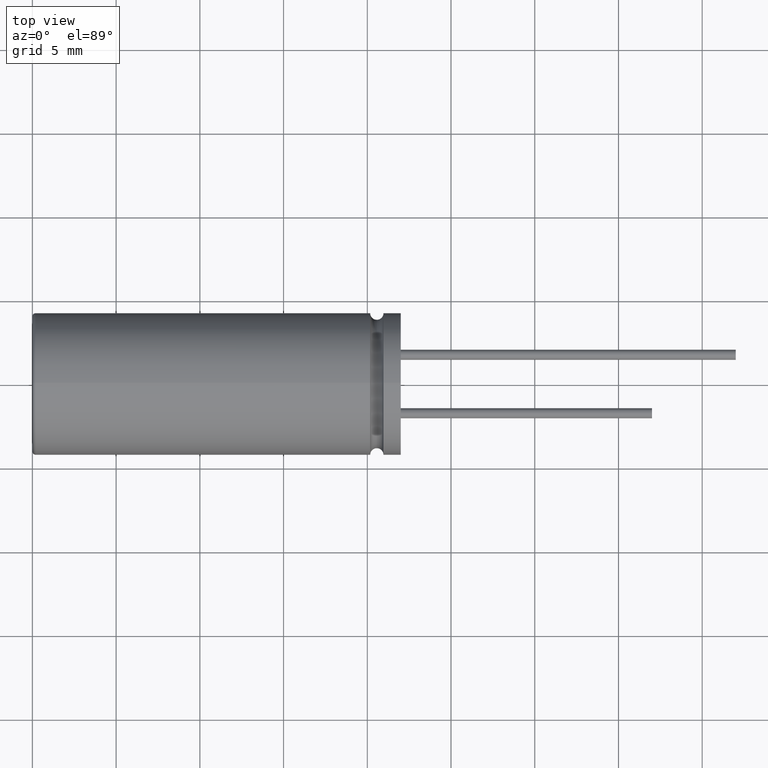
[diagram: clean part render]
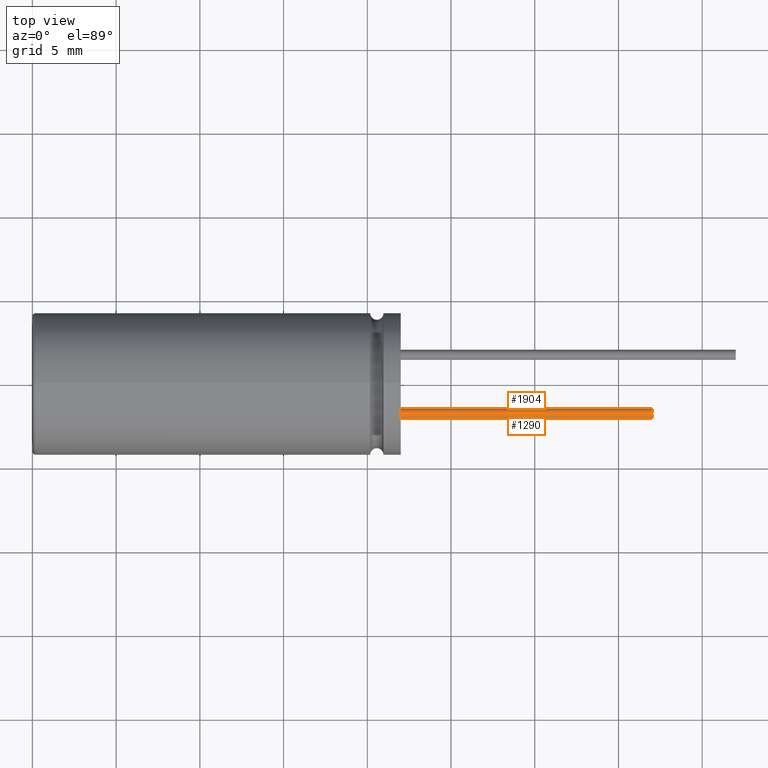
[diagram: same view with one multi-face feature highlighted, each face labeled with its STEP entity id]
A machine part, top view. The highlighted faces form ONE feature: a constant-radius fillet chain: 2 tangent blend faces with common blend radius 0.3 mm. The faces share edges in the B-rep.
Their STEP definitions:
[1] entity #1290 (Cylinder):
#168 = AXIS2_PLACEMENT_3D ( 'NONE', #329, #1618, #854 ) ;
#209 = DIRECTION ( 'NONE',  ( -1.000000000000000000, -0.0000000000000000000, -0.0000000000000000000 ) ) ;
#263 = CARTESIAN_POINT ( 'NONE',  ( 22.00000000000000000, -1.750000000000000000, 0.3000000000000000400 ) ) ;
#282 = ORIENTED_EDGE ( 'NONE', *, *, #1685, .F. ) ;
#329 = CARTESIAN_POINT ( 'NONE',  ( 22.00000000000000000, -1.750000000000000000, 0.0000000000000000000 ) ) ;
#508 = CARTESIAN_POINT ( 'NONE',  ( 37.00000000000000000, -1.750000000000000000, 0.0000000000000000000 ) ) ;
#652 = VECTOR ( 'NONE', #1252, 1000.000000000000000 ) ;
#756 = CIRCLE ( 'NONE', #1348, 0.3000000000000000400 ) ;
#854 = DIRECTION ( 'NONE',  ( 0.0000000000000000000, 0.0000000000000000000, -1.000000000000000000 ) ) ;
#999 = DIRECTION ( 'NONE',  ( 0.0000000000000000000, 0.0000000000000000000, 1.000000000000000000 ) ) ;
#1167 = ORIENTED_EDGE ( 'NONE', *, *, #1712, .T. ) ;
#1170 = EDGE_CURVE ( 'NONE', #3269, #1633, #2863, .T. ) ;
#1211 = EDGE_LOOP ( 'NONE', ( #282, #2688, #1293, #1167 ) ) ;
#1252 = DIRECTION ( 'NONE',  ( -1.000000000000000000, -0.0000000000000000000, -0.0000000000000000000 ) ) ;
#1290 = ADVANCED_FACE ( 'NONE', ( #2733 ), #2287, .T. ) ;
#1293 = ORIENTED_EDGE ( 'NONE', *, *, #1170, .T. ) ;
#1348 = AXIS2_PLACEMENT_3D ( 'NONE', #2830, #3088, #1692 ) ;
#1368 = CARTESIAN_POINT ( 'NONE',  ( 37.00000000000000000, -1.750000000000000000, -0.3000000000000000400 ) ) ;
#1416 = CARTESIAN_POINT ( 'NONE',  ( 37.00000000000000000, -1.750000000000000000, 0.3000000000000000400 ) ) ;
#1618 = DIRECTION ( 'NONE',  ( 1.000000000000000000, 0.0000000000000000000, 0.0000000000000000000 ) ) ;
#1633 = VERTEX_POINT ( 'NONE', #263 ) ;
#1642 = DIRECTION ( 'NONE',  ( -1.000000000000000000, -0.0000000000000000000, -0.0000000000000000000 ) ) ;
#1675 = AXIS2_PLACEMENT_3D ( 'NONE', #508, #209, #999 ) ;
#1685 = EDGE_CURVE ( 'NONE', #2049, #2116, #2438, .T. ) ;
#1692 = DIRECTION ( 'NONE',  ( 0.0000000000000000000, 0.0000000000000000000, -1.000000000000000000 ) ) ;
#1712 = EDGE_CURVE ( 'NONE', #1633, #2116, #1808, .T. ) ;
#1808 = CIRCLE ( 'NONE', #168, 0.3000000000000000400 ) ;
#2040 = VECTOR ( 'NONE', #1642, 1000.000000000000000 ) ;
#2049 = VERTEX_POINT ( 'NONE', #3342 ) ;
#2080 = CARTESIAN_POINT ( 'NONE',  ( 22.00000000000000000, -1.750000000000000000, -0.3000000000000000400 ) ) ;
#2116 = VERTEX_POINT ( 'NONE', #2080 ) ;
#2287 = CYLINDRICAL_SURFACE ( 'NONE', #1675, 0.3000000000000000400 ) ;
#2438 = LINE ( 'NONE', #1368, #2040 ) ;
#2530 = CARTESIAN_POINT ( 'NONE',  ( 37.00000000000000000, -1.750000000000000000, 0.3000000000000000400 ) ) ;
#2609 = EDGE_CURVE ( 'NONE', #3269, #2049, #756, .T. ) ;
#2688 = ORIENTED_EDGE ( 'NONE', *, *, #2609, .F. ) ;
#2733 = FACE_OUTER_BOUND ( 'NONE', #1211, .T. ) ;
#2830 = CARTESIAN_POINT ( 'NONE',  ( 37.00000000000000000, -1.750000000000000000, 0.0000000000000000000 ) ) ;
#2863 = LINE ( 'NONE', #2530, #652 ) ;
#3088 = DIRECTION ( 'NONE',  ( 1.000000000000000000, 0.0000000000000000000, 0.0000000000000000000 ) ) ;
#3269 = VERTEX_POINT ( 'NONE', #1416 ) ;
#3342 = CARTESIAN_POINT ( 'NONE',  ( 37.00000000000000000, -1.750000000000000000, -0.3000000000000000400 ) ) ;
[2] entity #1904 (Cylinder):
#263 = CARTESIAN_POINT ( 'NONE',  ( 22.00000000000000000, -1.750000000000000000, 0.3000000000000000400 ) ) ;
#426 = CYLINDRICAL_SURFACE ( 'NONE', #1221, 0.3000000000000000400 ) ;
#511 = CIRCLE ( 'NONE', #2428, 0.3000000000000000400 ) ;
#557 = ORIENTED_EDGE ( 'NONE', *, *, #1685, .T. ) ;
#652 = VECTOR ( 'NONE', #1252, 1000.000000000000000 ) ;
#681 = AXIS2_PLACEMENT_3D ( 'NONE', #915, #3283, #2005 ) ;
#915 = CARTESIAN_POINT ( 'NONE',  ( 22.00000000000000000, -1.750000000000000000, 0.0000000000000000000 ) ) ;
#927 = DIRECTION ( 'NONE',  ( -1.000000000000000000, -0.0000000000000000000, -0.0000000000000000000 ) ) ;
#1060 = EDGE_CURVE ( 'NONE', #2116, #1633, #1445, .T. ) ;
#1111 = DIRECTION ( 'NONE',  ( 1.000000000000000000, 0.0000000000000000000, 0.0000000000000000000 ) ) ;
#1170 = EDGE_CURVE ( 'NONE', #3269, #1633, #2863, .T. ) ;
#1221 = AXIS2_PLACEMENT_3D ( 'NONE', #1419, #927, #2246 ) ;
#1252 = DIRECTION ( 'NONE',  ( -1.000000000000000000, -0.0000000000000000000, -0.0000000000000000000 ) ) ;
#1368 = CARTESIAN_POINT ( 'NONE',  ( 37.00000000000000000, -1.750000000000000000, -0.3000000000000000400 ) ) ;
#1416 = CARTESIAN_POINT ( 'NONE',  ( 37.00000000000000000, -1.750000000000000000, 0.3000000000000000400 ) ) ;
#1419 = CARTESIAN_POINT ( 'NONE',  ( 37.00000000000000000, -1.750000000000000000, 0.0000000000000000000 ) ) ;
#1445 = CIRCLE ( 'NONE', #681, 0.3000000000000000400 ) ;
#1612 = CARTESIAN_POINT ( 'NONE',  ( 37.00000000000000000, -1.750000000000000000, 0.0000000000000000000 ) ) ;
#1633 = VERTEX_POINT ( 'NONE', #263 ) ;
#1642 = DIRECTION ( 'NONE',  ( -1.000000000000000000, -0.0000000000000000000, -0.0000000000000000000 ) ) ;
#1685 = EDGE_CURVE ( 'NONE', #2049, #2116, #2438, .T. ) ;
#1741 = ORIENTED_EDGE ( 'NONE', *, *, #1060, .T. ) ;
#1904 = ADVANCED_FACE ( 'NONE', ( #3014 ), #426, .T. ) ;
#1986 = EDGE_LOOP ( 'NONE', ( #2663, #557, #1741, #2396 ) ) ;
#2005 = DIRECTION ( 'NONE',  ( 0.0000000000000000000, 0.0000000000000000000, -1.000000000000000000 ) ) ;
#2040 = VECTOR ( 'NONE', #1642, 1000.000000000000000 ) ;
#2049 = VERTEX_POINT ( 'NONE', #3342 ) ;
#2080 = CARTESIAN_POINT ( 'NONE',  ( 22.00000000000000000, -1.750000000000000000, -0.3000000000000000400 ) ) ;
#2116 = VERTEX_POINT ( 'NONE', #2080 ) ;
#2145 = DIRECTION ( 'NONE',  ( 0.0000000000000000000, 0.0000000000000000000, -1.000000000000000000 ) ) ;
#2246 = DIRECTION ( 'NONE',  ( 0.0000000000000000000, 0.0000000000000000000, 1.000000000000000000 ) ) ;
#2357 = EDGE_CURVE ( 'NONE', #2049, #3269, #511, .T. ) ;
#2396 = ORIENTED_EDGE ( 'NONE', *, *, #1170, .F. ) ;
#2428 = AXIS2_PLACEMENT_3D ( 'NONE', #1612, #1111, #2145 ) ;
#2438 = LINE ( 'NONE', #1368, #2040 ) ;
#2530 = CARTESIAN_POINT ( 'NONE',  ( 37.00000000000000000, -1.750000000000000000, 0.3000000000000000400 ) ) ;
#2663 = ORIENTED_EDGE ( 'NONE', *, *, #2357, .F. ) ;
#2863 = LINE ( 'NONE', #2530, #652 ) ;
#3014 = FACE_OUTER_BOUND ( 'NONE', #1986, .T. ) ;
#3269 = VERTEX_POINT ( 'NONE', #1416 ) ;
#3283 = DIRECTION ( 'NONE',  ( 1.000000000000000000, 0.0000000000000000000, 0.0000000000000000000 ) ) ;
#3342 = CARTESIAN_POINT ( 'NONE',  ( 37.00000000000000000, -1.750000000000000000, -0.3000000000000000400 ) ) ;